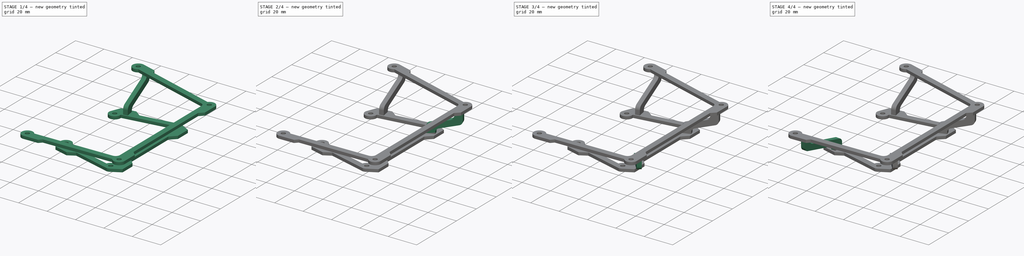
[diagram: build sequence overview — one tinted view per stage of 4, left to right]
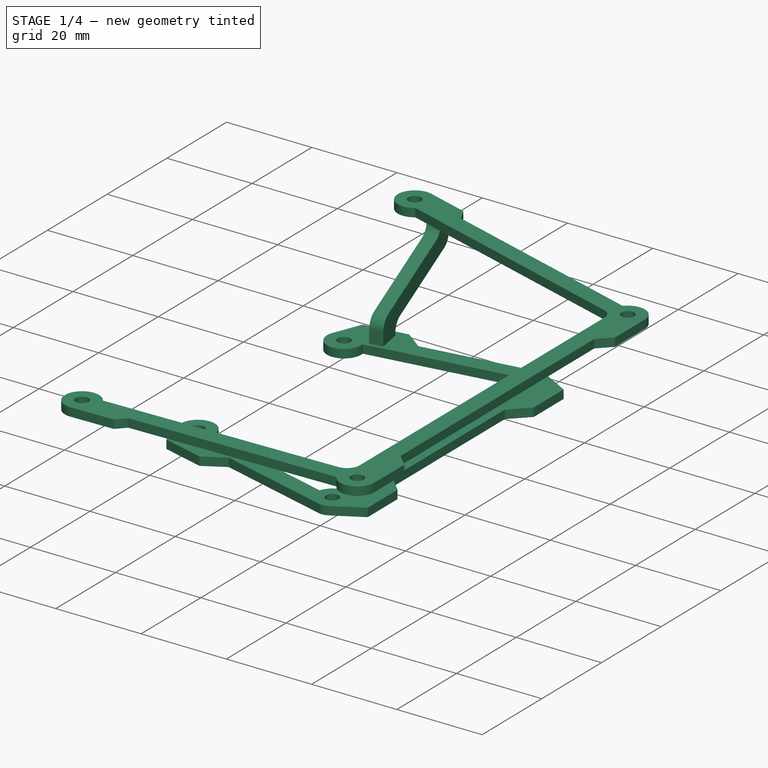
[diagram: stage 1 of 4 — iso view after this stage's code; geometry added in this stage tinted green]
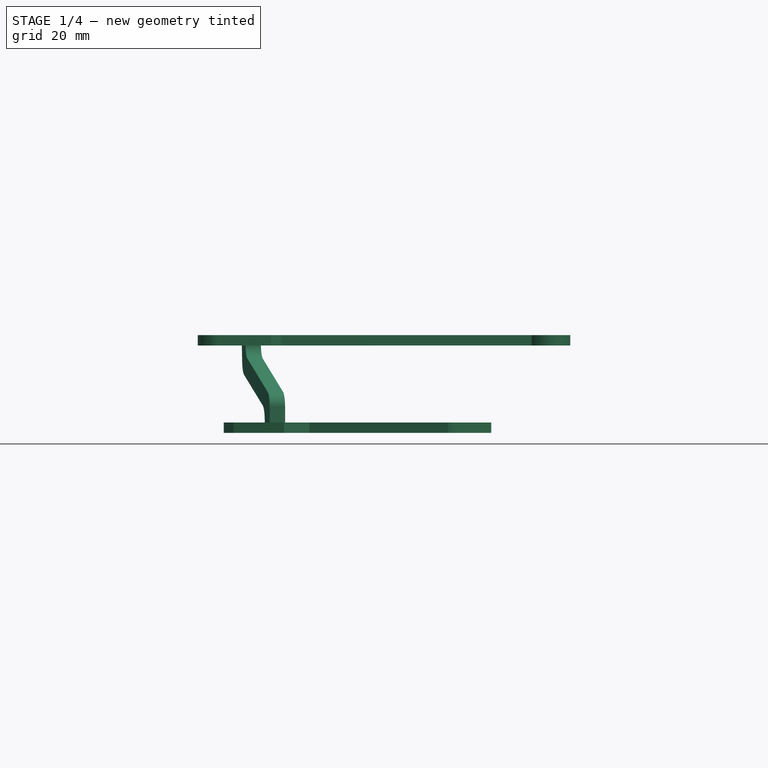
[diagram: stage 1 of 4 — front view after this stage's code; geometry added in this stage tinted green]
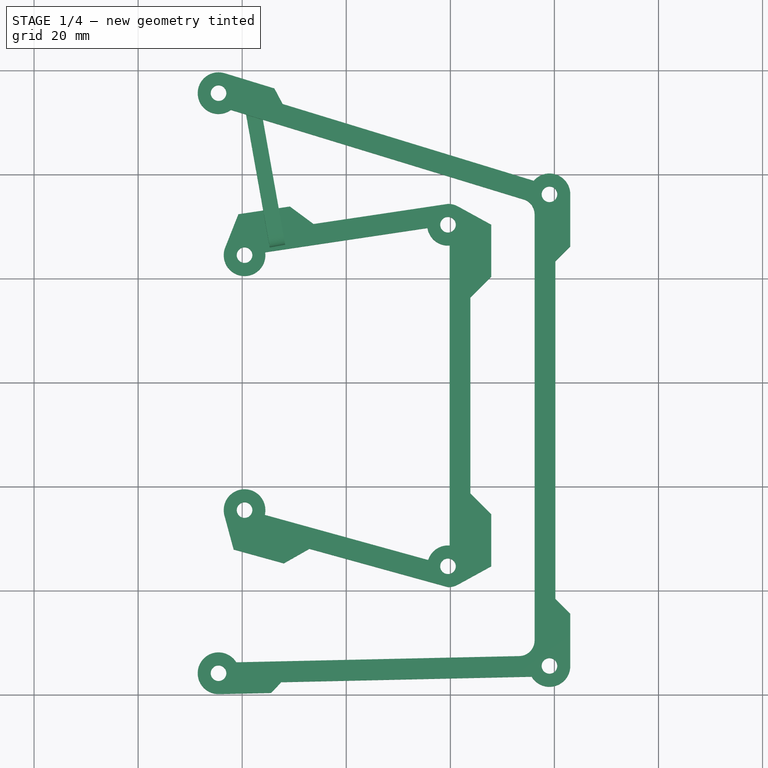
[diagram: stage 1 of 4 — top view after this stage's code; geometry added in this stage tinted green]
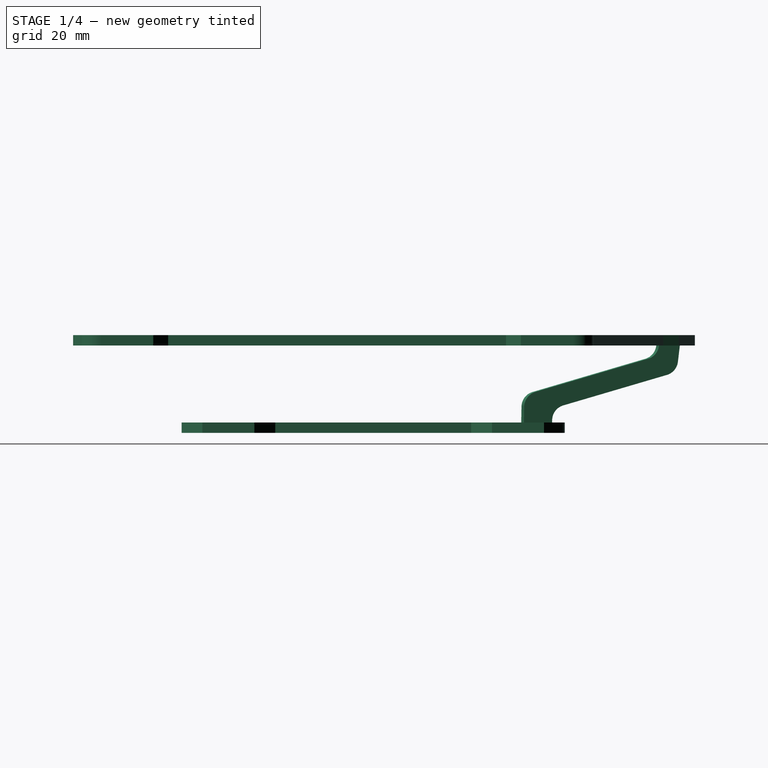
[diagram: stage 1 of 4 — right view after this stage's code; geometry added in this stage tinted green]
FCSTD DOCUMENT  (FreeCAD 0.18R15619 (Git))
Label: to-print-midibox
License: All rights reserved
LicenseURL: http://en.wikipedia.org/wiki/All_rights_reserved
objects: Sketcher::SketchObject×8, PartDesign::Point×7, PartDesign::Pad×6, PartDesign::Body×6, Part::Fuse×5, PartDesign::Plane×4, PartDesign::Line×3
note: 45 computed .brp shape members not serialized (recipe doc carries the construction recipe); baked Part::Feature solids carry a one-line shape summary decoded from their .brp

FEATURE [Sketcher::SketchObject] Sketch  label="sk-bottom"
  MapMode = 5
  Support = -> [XY_Plane]
  sketch-geometry (46):
    g0: Circle CenterX=-19.55 CenterY=24.5 CenterZ=0 NormalX=0 NormalY=0 NormalZ=1 AngleXU=0 Radius=1.5
    g1: Circle CenterX=19.55 CenterY=30.35 CenterZ=0 NormalX=0 NormalY=0 NormalZ=1 AngleXU=0 Radius=1.5
    g2: Circle CenterX=19.55 CenterY=-35.3 CenterZ=0 NormalX=0 NormalY=0 NormalZ=1 AngleXU=0 Radius=1.5
    g3: Circle CenterX=-19.55 CenterY=-24.5 CenterZ=0 NormalX=0 NormalY=0 NormalZ=1 AngleXU=0 Radius=1.5
    g4: LineSegment [constr] StartX=-19.55 StartY=24.5 StartZ=0 EndX=19.55 EndY=30.35 EndZ=0
    g5: LineSegment [constr] StartX=19.55 StartY=30.35 StartZ=0 EndX=19.55 EndY=-35.3 EndZ=0
    g6: LineSegment [constr] StartX=19.55 StartY=-35.3 StartZ=0 EndX=-19.55 EndY=-24.5 EndZ=0
    g7: Circle [constr] CenterX=-19.55 CenterY=24.5 CenterZ=0 NormalX=0 NormalY=0 NormalZ=1 AngleXU=0 Radius=4
    g8: Circle [constr] CenterX=19.55 CenterY=30.35 CenterZ=0 NormalX=0 NormalY=0 NormalZ=1 AngleXU=0 Radius=4
    g9: Circle [constr] CenterX=19.55 CenterY=-35.3 CenterZ=0 NormalX=0 NormalY=0 NormalZ=1 AngleXU=0 Radius=4
    g10: Circle [constr] CenterX=-19.55 CenterY=-24.5 CenterZ=0 NormalX=0 NormalY=0 NormalZ=1 AngleXU=0 Radius=4
    g11: LineSegment StartX=-15.5878 StartY=25.0483 StartZ=0 EndX=15.6008 EndY=29.7146 EndZ=0
    g12: LineSegment StartX=19.8617 StartY=26.3622 StartZ=0 EndX=19.8617 EndY=-31.3122 EndZ=0
    g13: LineSegment StartX=15.7353 StartY=-34.0965 StartZ=0 EndX=-15.6585 EndY=-25.4251 EndZ=0
    g14: ArcOfCircle CenterX=-19.55 CenterY=24.5 CenterZ=0 NormalX=0 NormalY=0 NormalZ=1 AngleXU=0 Radius=4 StartAngle=2.76331 EndAngle=6.42069
    g15: ArcOfCircle CenterX=19.55 CenterY=30.35 CenterZ=0 NormalX=0 NormalY=0 NormalZ=1 AngleXU=0 Radius=4 StartAngle=1.06872 EndAngle=1.5708
    g16: ArcOfCircle CenterX=19.55 CenterY=-35.3 CenterZ=0 NormalX=0 NormalY=0 NormalZ=1 AngleXU=0 Radius=4 StartAngle=4.71239 EndAngle=5.21447
    g17: ArcOfCircle CenterX=-19.55 CenterY=-24.5 CenterZ=0 NormalX=0 NormalY=0 NormalZ=1 AngleXU=0 Radius=4 StartAngle=6.04979 EndAngle=9.68952
    g18: ArcOfCircle CenterX=19.55 CenterY=30.35 CenterZ=0 NormalX=0 NormalY=0 NormalZ=1 AngleXU=0 Radius=4 StartAngle=3.30112 EndAngle=4.79039
    g19: ArcOfCircle CenterX=19.55 CenterY=-35.3 CenterZ=0 NormalX=0 NormalY=0 NormalZ=1 AngleXU=0 Radius=4 StartAngle=1.4928 EndAngle=2.83599
    g20: LineSegment [constr] StartX=-16.1796 StartY=29.0043 StartZ=0 EndX=-15.5878 EndY=25.0483 EndZ=0
    g21: LineSegment [constr] StartX=19.8617 StartY=26.3622 StartZ=0 EndX=23.8617 EndY=26.3622 EndZ=0
    g22: LineSegment [constr] StartX=-19.55 StartY=24.5 StartZ=0 EndX=-19.55 EndY=-24.5 EndZ=0
    g23: LineSegment StartX=-23.2672 StartY=25.9773 StartZ=0 EndX=-20.7272 EndY=32.3684 EndZ=0
    g24: LineSegment StartX=-20.7272 StartY=32.3684 StartZ=0 EndX=-10.8373 EndY=33.8481 EndZ=0
    g25: LineSegment StartX=-10.8373 StartY=33.8481 StartZ=0 EndX=-6.28947 EndY=30.484 EndZ=0
    g26: LineSegment StartX=-6.28947 StartY=30.484 StartZ=0 EndX=19.55 EndY=34.35 EndZ=0
    g27: LineSegment [constr] StartX=-20.7272 StartY=32.3684 StartZ=0 EndX=-19.55 EndY=24.5 EndZ=0
    g28: LineSegment StartX=21.475 StartY=33.8563 StartZ=0 EndX=27.8617 EndY=30.35 EndZ=0
    g29: LineSegment StartX=27.8617 StartY=30.35 StartZ=0 EndX=27.8617 EndY=20.35 EndZ=0
    g30: LineSegment StartX=27.8617 StartY=20.35 StartZ=0 EndX=23.8617 EndY=16.35 EndZ=0
    g31: LineSegment StartX=23.8617 StartY=16.35 StartZ=0 EndX=23.8617 EndY=-21.3 EndZ=0
    g32: LineSegment StartX=23.8617 StartY=-21.3 StartZ=0 EndX=27.8617 EndY=-25.3 EndZ=0
    g33: LineSegment StartX=27.8617 StartY=-25.3 StartZ=0 EndX=27.8617 EndY=-35.3 EndZ=0
    g34: LineSegment StartX=27.8617 StartY=-35.3 StartZ=0 EndX=21.475 EndY=-38.8063 EndZ=0
    g35: LineSegment [constr] StartX=19.55 StartY=30.35 StartZ=0 EndX=27.8617 EndY=30.35 EndZ=0
    g36: LineSegment [constr] StartX=19.55 StartY=-35.3 StartZ=0 EndX=27.8617 EndY=-35.3 EndZ=0
    g37: LineSegment [constr] StartX=-16.7715 StartY=32.9602 StartZ=0 EndX=-16.1796 EndY=29.0043 EndZ=0
    g38: LineSegment [constr] StartX=23.8617 StartY=26.3622 StartZ=0 EndX=27.8617 EndY=26.3622 EndZ=0
    g39: LineSegment StartX=-23.4106 StartY=-25.5466 StartZ=0 EndX=-21.6415 EndY=-32.0721 EndZ=0
    g40: LineSegment StartX=-21.6415 StartY=-32.0721 StartZ=0 EndX=-12.0025 EndY=-34.7345 EndZ=0
    g41: LineSegment StartX=-12.0025 StartY=-34.7345 StartZ=0 EndX=-7.08186 EndY=-31.9439 EndZ=0
    g42: LineSegment StartX=-7.08186 StartY=-31.9439 StartZ=0 EndX=19.55 EndY=-39.3 EndZ=0
    g43: LineSegment [constr] StartX=-15.6585 StartY=-25.4251 StartZ=0 EndX=-16.7234 EndY=-29.2807 EndZ=0
    g44: LineSegment [constr] StartX=-16.7234 StartY=-29.2807 StartZ=0 EndX=-17.7884 EndY=-33.1364 EndZ=0
    g45: LineSegment [constr] StartX=-19.55 StartY=-24.5 StartZ=0 EndX=-21.6415 EndY=-32.0721 EndZ=0
  constraints (125):
    c: Radius(g3) = 1.5  'Hole radius'
    c: Equal(g3,g0)
    c: Equal(g3,g1)
    c: Equal(g3,g2)
    c: Coincident(g5,g6)
    c: Coincident(g0,g4)
    c: Coincident(g1,g4)
    c: Coincident(g1,g5)
    c: Coincident(g2,g5)
    c: Coincident(g3,g6)
    c: Coincident(g0,g7)
    c: Coincident(g1,g8)
    c: Coincident(g2,g9)
    c: Coincident(g3,g10)
    c: Radius(g8) = 4  'Outer radius'
    c: Equal(g8,g9)
    c: Equal(g8,g10)
    c: Equal(g8,g7)
    c: PointOnObject(g14,g7)
    c: PointOnObject(g11,g8)
    c: PointOnObject(g15,g8)
    c: PointOnObject(g12,g9)
    c: PointOnObject(g16,g9)
    c: PointOnObject(g13,g10)
    c: Parallel(g11,g4)
    c: Parallel(g12,g5)
    c: Parallel(g13,g6)
    c: Coincident(g14,g0)
    c: Coincident(g11,g14)
    c: Coincident(g15,g1)
    c: Coincident(g16,g2)
    c: Coincident(g17,g3)
    c: Coincident(g17,g13)
    c: Coincident(g18,g1)
    c: Coincident(g18,g12)
    c: Coincident(g18,g11)
    c: Coincident(g19,g12)
    c: Coincident(g19,g13)
    c: Coincident(g19,g2)
    c: Equal(g21,g20)
    c: PointOnObject(g15,g5)
    c: PointOnObject(g16,g5)
    c: Distance(g21) = 4  'Thickness'
    c: DistanceX(g0,g1) = 39.1
    c: DistanceY(g2,g1) = 65.65
    c: Vertical(g5)
    c: DistanceY(g-1,g0) = 24.5
    c: Coincident(g22,g0)
    c: Coincident(g22,g3)
    c: Vertical(g22)
    c: Distance(g22) = 49
    c: DistanceX(g-2,g0) = -19.55
    c: DistanceY(g2,g3) = 10.8
    c: Coincident(g20,g11)
    c: Coincident(g21,g12)
    c: Coincident(g23,g24)
    c: Coincident(g24,g25)
    c: Coincident(g25,g26)
    c: Perpendicular(g4,g20)
    c: PointOnObject(g20,g26)
    c: Coincident(g26,g15)
    c: Coincident(g23,g14)
    c: Tangent(g23,g7)
    c: Coincident(g27,g23)
    c: Coincident(g27,g0)
    c: Perpendicular(g4,g27)
    c: Distance(g24) = 10
    c: Parallel(g24,g4)
    c: Angle(g24,g25) = 2.35619
    c: Parallel(g26,g4)
    c: Coincident(g28,g29)
    c: Coincident(g29,g30)
    c: Coincident(g30,g31)
    c: Coincident(g31,g32)
    c: Coincident(g32,g33)
    c: Coincident(g33,g34)
    c: Coincident(g34,g16)
    c: Equal(g24,g29)
    c: Coincident(g28,g15)
    c: Tangent(g28,g8)
    c: Coincident(g35,g1)
    c: Coincident(g35,g28)
    c: Perpendicular(g5,g35)
    c: Parallel(g29,g5)
    c: Parallel(g31,g5)
    c: PointOnObject(g21,g31)
    c: Perpendicular(g5,g21)
    c: Parallel(g33,g5)
    c: Equal(g33,g29)
    c: Angle(g32,g33) = 2.35619
    c: Tangent(g34,g9)
    c: Coincident(g2,g36)
    c: Coincident(g36,g33)
    c: Perpendicular(g5,g36)
    c: PointOnObject(g37,g24)
    c: Coincident(g37,g20)
    c: Perpendicular(g37,g24)
    c: Equal(g37,g20)
    c: PointOnObject(g38,g29)
    c: Coincident(g38,g21)
    c: Perpendicular(g29,g38)
    c: Equal(g38,g21)
    c: Angle(g29,g30) = 2.35619
    c: Vertical(g32,g29)
    c: Coincident(g39,g40)
    c: Coincident(g40,g41)
    c: Coincident(g41,g42)
    c: Coincident(g42,g16)
    c: Parallel(g42,g6)
    c: Parallel(g40,g6)
    c: Coincident(g39,g17)
    c: Tangent(g39,g10)
    c: Angle(g41,g40) = 2.35619
    c: Coincident(g43,g13)
    c: PointOnObject(g43,g42)
    c: Perpendicular(g6,g43)
    c: Coincident(g44,g43)
    c: Perpendicular(g6,g44)
    c: Equal(g44,g43)
    c: PointOnObject(g44,g40)
    c: Equal(g40,g33)
    c: Equal(g44,g21)
    c: Coincident(g45,g3)
    c: Coincident(g45,g39)
    c: Perpendicular(g6,g45)
FEATURE [PartDesign::Pad] Pad  label="pad-bottom"
  Length = 2
  Length2 = 100
  Profile = -> Sketch
  Type = 0
FEATURE [PartDesign::Body] Body  label="bottom"
  Group = -> [Sketch,Pad]
  Origin = -> Origin
  Tip = -> Pad
FEATURE [PartDesign::Point] DatumPoint  label="bot"
  AttacherType = Attacher::AttachEnginePoint
  MapMode = 36
  Placement = pos=(19.55,30.35,0) rot=(1,0,0;1.5708rad)
  Support = -> [Sketch]
FEATURE [Sketcher::SketchObject] Sketch001  label="sk-top"
  ExternalGeometry = -> [DatumPoint]
  Placement = pos=(0,0,18.8) rot=(0,0,1;0rad)
  sketch-geometry (44):
    g0: LineSegment [constr] StartX=-24.55 StartY=55.35 StartZ=0 EndX=39.05 EndY=35.9 EndZ=0
    g1: LineSegment [constr] StartX=39.05 StartY=35.9 StartZ=0 EndX=39.05 EndY=-54.75 EndZ=0
    g2: LineSegment [constr] StartX=39.05 StartY=-54.75 StartZ=0 EndX=-24.55 EndY=-56.15 EndZ=0
    g3: LineSegment [constr] StartX=36.1883 StartY=32.0737 StartZ=0 EndX=40.216 EndY=32.0737 EndZ=0
    g4: Circle CenterX=-24.55 CenterY=55.35 CenterZ=0 NormalX=0 NormalY=0 NormalZ=1 AngleXU=0 Radius=1.5
    g5: Circle CenterX=39.05 CenterY=35.9 CenterZ=0 NormalX=0 NormalY=0 NormalZ=1 AngleXU=0 Radius=1.5
    g6: Circle CenterX=39.05 CenterY=-54.75 CenterZ=0 NormalX=0 NormalY=0 NormalZ=1 AngleXU=0 Radius=1.5
    g7: Circle CenterX=-24.55 CenterY=-56.15 CenterZ=0 NormalX=0 NormalY=0 NormalZ=1 AngleXU=0 Radius=1.5
    g8: Circle [constr] CenterX=-24.55 CenterY=55.35 CenterZ=0 NormalX=0 NormalY=0 NormalZ=1 AngleXU=0 Radius=4
    g9: Circle [constr] CenterX=39.05 CenterY=35.9 CenterZ=0 NormalX=0 NormalY=0 NormalZ=1 AngleXU=0 Radius=4
    g10: Circle [constr] CenterX=39.05 CenterY=-54.75 CenterZ=0 NormalX=0 NormalY=0 NormalZ=1 AngleXU=0 Radius=4
    g11: Circle [constr] CenterX=-24.55 CenterY=-56.15 CenterZ=0 NormalX=0 NormalY=0 NormalZ=1 AngleXU=0 Radius=4
    g12: LineSegment StartX=36.1883 StartY=32.0737 StartZ=0 EndX=36.1883 EndY=-49.8608 EndZ=0
    g13: LineSegment StartX=-21.141 StartY=-54.0575 StartZ=0 EndX=33.2543 EndY=-52.8601 EndZ=0
    g14: ArcOfCircle CenterX=-24.55 CenterY=55.35 CenterZ=0 NormalX=0 NormalY=0 NormalZ=1 AngleXU=0 Radius=4 StartAngle=1.27401 EndAngle=5.34481
    g15: ArcOfCircle CenterX=33.1883 CenterY=32.0737 CenterZ=0 NormalX=0 NormalY=0 NormalZ=1 AngleXU=0 Radius=3 StartAngle=-9e-16 EndAngle=1.15662
    g16: ArcOfCircle CenterX=33.1883 CenterY=-49.8608 CenterZ=0 NormalX=0 NormalY=0 NormalZ=1 AngleXU=0 Radius=3 StartAngle=4.7344 EndAngle=6.28319
    g17: ArcOfCircle CenterX=39.05 CenterY=35.9 CenterZ=0 NormalX=0 NormalY=0 NormalZ=1 AngleXU=0 Radius=4 StartAngle=0 EndAngle=2.43162
    g18: ArcOfCircle CenterX=39.05 CenterY=-54.75 CenterZ=0 NormalX=0 NormalY=0 NormalZ=1 AngleXU=0 Radius=4 StartAngle=3.68231 EndAngle=6.28319
    g19: ArcOfCircle CenterX=-24.55 CenterY=-56.15 CenterZ=0 NormalX=0 NormalY=0 NormalZ=1 AngleXU=0 Radius=4 StartAngle=0.550514 EndAngle=4.7344
    g20: LineSegment [constr] StartX=36.0165 StartY=38.5072 StartZ=0 EndX=33.1883 EndY=32.0737 EndZ=0
    g21: LineSegment [constr] StartX=33.1883 StartY=32.0737 StartZ=0 EndX=40.216 EndY=32.0737 EndZ=0
    g22: LineSegment [constr] StartX=33.1883 StartY=-49.8608 StartZ=0 EndX=40.4602 EndY=-51.0068 EndZ=0
    g23: LineSegment [constr] StartX=35.6206 StartY=-56.809 StartZ=0 EndX=33.1883 EndY=-49.8608 EndZ=0
    g24: LineSegment [constr] StartX=-24.55 StartY=55.35 StartZ=0 EndX=-24.55 EndY=-56.15 EndZ=0
    g25: LineSegment StartX=-22.1856 StartY=52.1236 StartZ=0 EndX=34.3956 EndY=34.8201 EndZ=0
    g26: LineSegment StartX=-23.3802 StartY=59.1751 StartZ=0 EndX=-13.8174 EndY=56.2506 EndZ=0
    g27: LineSegment StartX=-13.8174 StartY=56.2506 StartZ=0 EndX=-12.2283 EndY=53.2613 EndZ=0
    g28: LineSegment StartX=-12.2283 StartY=53.2613 StartZ=0 EndX=36.0165 EndY=38.5072 EndZ=0
    g29: LineSegment StartX=43.05 StartY=-54.75 StartZ=0 EndX=43.05 EndY=-44.75 EndZ=0
    g30: LineSegment StartX=40.1883 StartY=-41.8883 StartZ=0 EndX=43.05 EndY=-44.75 EndZ=0
    g31: LineSegment StartX=43.05 StartY=35.9 StartZ=0 EndX=43.05 EndY=25.9 EndZ=0
    g32: LineSegment StartX=43.05 StartY=25.9 StartZ=0 EndX=40.1883 EndY=23.0383 EndZ=0
    g33: LineSegment StartX=40.1883 StartY=23.0383 StartZ=0 EndX=40.1883 EndY=-41.8883 EndZ=0
    g34: LineSegment [constr] StartX=36.1883 StartY=23.0383 StartZ=0 EndX=40.1883 EndY=23.0383 EndZ=0
    g35: LineSegment [constr] StartX=-12.2283 StartY=53.2613 StartZ=0 EndX=-13.398 EndY=49.4362 EndZ=0
    g36: LineSegment [constr] StartX=-23.3802 StartY=59.1751 StartZ=0 EndX=-24.55 EndY=55.35 EndZ=0
    g37: LineSegment [constr] StartX=43.05 StartY=35.9 StartZ=0 EndX=39.05 EndY=35.9 EndZ=0
    g38: LineSegment [constr] StartX=39.05 StartY=-54.75 StartZ=0 EndX=43.05 EndY=-54.75 EndZ=0
    g39: LineSegment StartX=-24.462 StartY=-60.149 StartZ=0 EndX=-14.4644 EndY=-59.929 EndZ=0
    g40: LineSegment StartX=-14.4644 StartY=-59.929 StartZ=0 EndX=-12.4923 EndY=-57.8681 EndZ=0
    g41: LineSegment StartX=-12.4923 StartY=-57.8681 StartZ=0 EndX=35.6206 EndY=-56.809 EndZ=0
    g42: LineSegment [constr] StartX=-24.55 StartY=-56.15 StartZ=0 EndX=-24.462 EndY=-60.149 EndZ=0
    g43: LineSegment [constr] StartX=-12.4923 StartY=-57.8681 StartZ=0 EndX=-12.5803 EndY=-53.8691 EndZ=0
  constraints (115):
    c: Coincident(g0,g1)
    c: Coincident(g1,g2)
    c: Perpendicular(g1,g3)
    c: Coincident(g7,g2)
    c: Coincident(g4,g0)
    c: Coincident(g5,g0)
    c: Coincident(g6,g1)
    c: Radius(g7) = 1.5  'hole radius'
    c: Equal(g7,g6)
    c: Equal(g7,g5)
    c: Equal(g7,g4)
    c: Radius(g11) = 4  'Outer Radius'
    c: Equal(g11,g10)
    c: Equal(g11,g9)
    c: Equal(g11,g8)
    c: Coincident(g8,g4)
    c: Coincident(g9,g5)
    c: Coincident(g10,g6)
    c: Coincident(g11,g7)
    c: Parallel(g13,g2)
    c: Parallel(g12,g1)
    c: PointOnObject(g17,g9)
    c: PointOnObject(g13,g11)
    c: Coincident(g14,g4)
    c: Tangent(g12,g15) = 1.5708
    c: Tangent(g12,g16) = 1.5708
    c: Tangent(g13,g16) = -1.5708
    c: Radius(g16) = 3  'Inner radius'
    c: Equal(g16,g15)
    c: Tangent(g15,g9)
    c: Coincident(g17,g5)
    c: Coincident(g18,g6)
    c: PointOnObject(g14,g8)
    c: PointOnObject(g18,g10)
    c: Coincident(g19,g13)
    c: Coincident(g19,g7)
    c: Coincident(g21,g20)
    c: Coincident(g21,g15)
    c: Equal(g20,g21)
    c: Coincident(g16,g22)
    c: Coincident(g16,g23)
    c: Coincident(g3,g12)
    c: Coincident(g18,g23)
    c: Equal(g23,g22)
    c: Vertical(g1)
    c: Coincident(g7,g24)
    c: Coincident(g24,g4)
    c: Vertical(g24)
    c: DistanceX(g4,g5) = 63.6
    c: DistanceY(g5,g4) = 19.45
    c: Distance(g1) = 90.65
    c: Distance(g24) = 111.5
    c: Coincident(g25,g15)
    c: Coincident(g14,g25)
    c: PointOnObject(g15,g20)
    c: DistanceX(g-3,g5) = 19.5
    c: DistanceY(g-3,g4) = 25
    c: Coincident(g26,g27)
    c: Coincident(g28,g17)
    c: Parallel(g28,g0)
    c: Parallel(g26,g0)
    c: Coincident(g20,g17)
    c: Coincident(g14,g26)
    c: Coincident(g29,g30)
    c: Coincident(g3,g21)
    c: Coincident(g18,g29)
    c: Parallel(g29,g1)
    c: Coincident(g31,g32)
    c: Coincident(g32,g33)
    c: Coincident(g30,g33)
    c: Parallel(g33,g1)
    c: Coincident(g17,g31)
    c: Parallel(g31,g1)
    c: Equal(g31,g26)
    c: Equal(g26,g29)
    c: Distance(g26) = 10  'Pad Length'
    c: PointOnObject(g3,g9)
    c: Coincident(g34,g32)
    c: PointOnObject(g34,g12)
    c: Perpendicular(g1,g34)
    c: Coincident(g28,g27)
    c: Coincident(g35,g27)
    c: PointOnObject(g35,g25)
    c: Perpendicular(g0,g35)
    c: Equal(g35,g34)
    c: Distance(g34) = 4  'Thickness'
    c: Coincident(g4,g36)
    c: Coincident(g36,g14)
    c: Perpendicular(g0,g36)
    c: Angle(g26,g27) = 2.35619
    c: Coincident(g37,g17)
    c: Coincident(g37,g5)
    c: Perpendicular(g1,g37)
    c: Angle(g31,g32) = 2.35619
    c: Coincident(g38,g18)
    c: Coincident(g38,g6)
    c: Perpendicular(g1,g38)
    c: Angle(g30,g29) = 2.35619
    c: Coincident(g39,g40)
    c: Coincident(g40,g41)
    c: Coincident(g18,g41)
    c: Parallel(g41,g2)
    c: Coincident(g39,g19)
    c: Parallel(g39,g2)
    c: Coincident(g42,g19)
    c: Coincident(g42,g7)
    c: Perpendicular(g2,g42)
    c: Equal(g39,g29)
    c: Coincident(g43,g40)
    c: PointOnObject(g43,g13)
    c: Perpendicular(g2,g43)
    c: Equal(g43,g34)
    c: Angle(g40,g39) = 2.35619
    c: PointOnObject(g22,g10)
    c: Parallel(g25,g0)
FEATURE [PartDesign::Pad] Pad001
  Length = 2
  Length2 = 100
  Placement = pos=(0,0,18.8) rot=(0,0,1;0rad)
  Profile = -> Sketch001
  Reversed = true
  Type = 0
FEATURE [Sketcher::SketchObject] Sketch002  label="bot-01"
  Placement = pos=(0,0,2) rot=(0,0,1;0rad)
  sketch-geometry (7):
    g0: LineSegment [constr] StartX=-18.5217 StartY=53.8625 StartZ=0 EndX=-13.6606 EndY=28.8456 EndZ=0
    g1: LineSegment StartX=-16.0979 StartY=30.9034 StartZ=0 EndX=-12.1713 EndY=31.6664 EndZ=0
    g2: LineSegment StartX=-12.1713 StartY=31.6664 StartZ=0 EndX=-11.2233 EndY=26.7877 EndZ=0
    g3: LineSegment StartX=-11.2233 StartY=26.7877 StartZ=0 EndX=-15.1499 EndY=26.0247 EndZ=0
    g4: LineSegment StartX=-15.1499 StartY=26.0247 StartZ=0 EndX=-16.0979 EndY=30.9034 EndZ=0
    g5: LineSegment [constr] StartX=-12.1713 StartY=31.6664 StartZ=0 EndX=-15.1499 EndY=26.0247 EndZ=0
    g6: LineSegment [constr] StartX=-16.0979 StartY=30.9034 StartZ=0 EndX=-11.2233 EndY=26.7877 EndZ=0
  constraints (15):
    c: Coincident(g1,g2)
    c: Coincident(g2,g3)
    c: Coincident(g3,g4)
    c: Coincident(g4,g1)
    c: Parallel(g4,g0)
    c: Parallel(g0,g2)
    c: Parallel(g1,g3)
    c: Perpendicular(g2,g1)
    c: Distance(g1) = 4
    c: Coincident(g5,g1)
    c: Coincident(g5,g3)
    c: Coincident(g1,g6)
    c: Coincident(g6,g2)
    c: PointOnObject(g0,g5)
    c: PointOnObject(g0,g6)
FEATURE [Sketcher::SketchObject] Sketch003  label="top-01"
  Placement = pos=(0,0,16.8) rot=(0,0,1;0rad)
  sketch-geometry (8):
    g0: LineSegment StartX=-20.5201 StartY=55.5766 StartZ=0 EndX=-16.5851 EndY=56.2948 EndZ=0
    g1: LineSegment StartX=-16.5851 StartY=56.2948 StartZ=0 EndX=-15.9709 EndY=52.9295 EndZ=0
    g2: LineSegment StartX=-15.9709 StartY=52.9295 StartZ=0 EndX=-19.9059 EndY=52.2113 EndZ=0
    g3: LineSegment StartX=-19.9059 StartY=52.2113 StartZ=0 EndX=-20.5201 EndY=55.5766 EndZ=0
    g4: LineSegment [constr] StartX=-16.5851 StartY=56.2948 StartZ=0 EndX=-19.9059 EndY=52.2113 EndZ=0
    g5: LineSegment [constr] StartX=-20.5201 StartY=55.5766 StartZ=0 EndX=-15.9709 EndY=52.9295 EndZ=0
    g6: GeomPoint X=-18.2455 Y=54.2531 Z=0
    g7: LineSegment [constr] StartX=-18.2455 StartY=54.2531 StartZ=0 EndX=-13.5938 EndY=28.7665 EndZ=0
  constraints (16):
    c: Coincident(g0,g1)
    c: Coincident(g1,g2)
    c: Coincident(g2,g3)
    c: Coincident(g3,g0)
    c: Equal(g1,g3)
    c: Equal(g0,g2)
    c: Perpendicular(g1,g0)
    c: Coincident(g5,g0)
    c: Coincident(g5,g1)
    c: Coincident(g4,g2)
    c: Coincident(g4,g0)
    c: PointOnObject(g6,g4)
    c: PointOnObject(g6,g5)
    c: Coincident(g7,g6)
    c: Perpendicular(g2,g7)
    c: Distance(g2) = 4
FEATURE [PartDesign::Plane] DatumPlane
  AttachmentOffset = pos=(0,0,-2) rot=(0,0,1;0rad)
  Length = 39.1323
  MapMode = 52
  Placement = pos=(-18.5537,55.942,16.8) rot=(0.717997,-0.129474,0.683898;3.63926rad)
  ResizeMode = 0
  Support = -> [Sketch003,Sketch002,Z_Axis002]
  Width = 83.2212
FEATURE [Sketcher::SketchObject] Sketch004
  MapMode = 5
  Placement = pos=(-18.5537,55.942,16.8) rot=(0.717997,-0.129474,0.683898;3.63926rad)
  Support = -> [DatumPlane]
  sketch-geometry (12):
    g0: LineSegment StartX=1.89828 StartY=33.9613 StartZ=0 EndX=5.22008 EndY=31.9127 EndZ=0
    g1: LineSegment StartX=6.55033 StartY=28.6103 StartZ=0 EndX=0.831685 EndY=6.42752 EndZ=0
    g2: LineSegment StartX=1.91498 StartY=3.29507 StartZ=0 EndX=2.35313 EndY=2.9602 EndZ=0
    g3: LineSegment StartX=2.35313 StartY=2.9602 StartZ=0 EndX=-0.0952325 EndY=-0.243246 EndZ=0
    g4: LineSegment StartX=-0.0952325 StartY=-0.243246 StartZ=0 EndX=-2.62878 EndY=1.69311 EndZ=0
    g5: LineSegment StartX=-3.71207 StartY=4.82557 StartZ=0 EndX=1.5499 EndY=25.2369 EndZ=0
    g6: LineSegment StartX=0.219648 StartY=28.5393 StartZ=0 EndX=-0.986732 EndY=29.2833 EndZ=0
    g7: LineSegment StartX=-0.986732 StartY=29.2833 StartZ=0 EndX=1.89828 EndY=33.9613 EndZ=0
    g8: ArcOfCircle CenterX=3.64531 CenterY=29.3592 CenterZ=0 NormalX=0 NormalY=0 NormalZ=1 AngleXU=0 Radius=3 StartAngle=6.03088 EndAngle=7.30136
    g9: ArcOfCircle CenterX=-1.35512 CenterY=25.9858 CenterZ=0 NormalX=0 NormalY=0 NormalZ=1 AngleXU=0 Radius=3 StartAngle=6.03088 EndAngle=7.30136
    g10: ArcOfCircle CenterX=3.73671 CenterY=5.67862 CenterZ=0 NormalX=0 NormalY=0 NormalZ=1 AngleXU=0 Radius=3 StartAngle=2.88929 EndAngle=4.05981
    g11: ArcOfCircle CenterX=-0.807053 CenterY=4.07667 CenterZ=0 NormalX=0 NormalY=0 NormalZ=1 AngleXU=0 Radius=3 StartAngle=2.88929 EndAngle=4.05981
  constraints (22):
    c: Coincident(g2,g3)
    c: Coincident(g3,g4)
    c: Coincident(g6,g7)
    c: Coincident(g7,g0)
    c: Parallel(g1,g5)
    c: Parallel(g2,g4)
    c: Parallel(g0,g6)
    c: Perpendicular(g4,g3)
    c: Perpendicular(g0,g7)
    c: Tangent(g0,g8) = 1.5708
    c: Tangent(g1,g8) = 1.5708
    c: Tangent(g5,g9) = -1.5708
    c: Tangent(g6,g9) = -1.5708
    c: Tangent(g1,g10) = -1.5708
    c: Tangent(g2,g10) = -1.5708
    c: Tangent(g4,g11) = 1.5708
    c: Tangent(g5,g11) = 1.5708
    c: Radius(g11) = 3
    c: Equal(g11,g10)
    c: Equal(g11,g9)
    c: Equal(g11,g8)
    c: Distance(g5,g1) = 4
FEATURE [PartDesign::Pad] Pad002
  Length = 3
  Length2 = 100
  Midplane = true
  Placement = pos=(-18.5537,55.942,16.8) rot=(0.717997,-0.129474,0.683898;3.63926rad)
  Profile = -> Sketch004
  Type = 0
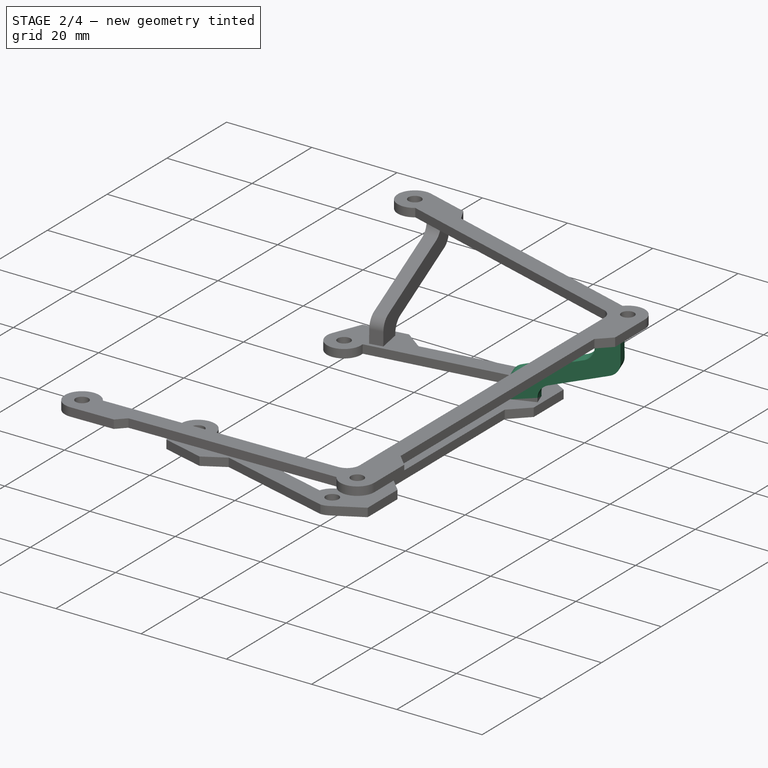
[diagram: stage 2 of 4 — iso view after this stage's code; geometry added in this stage tinted green]
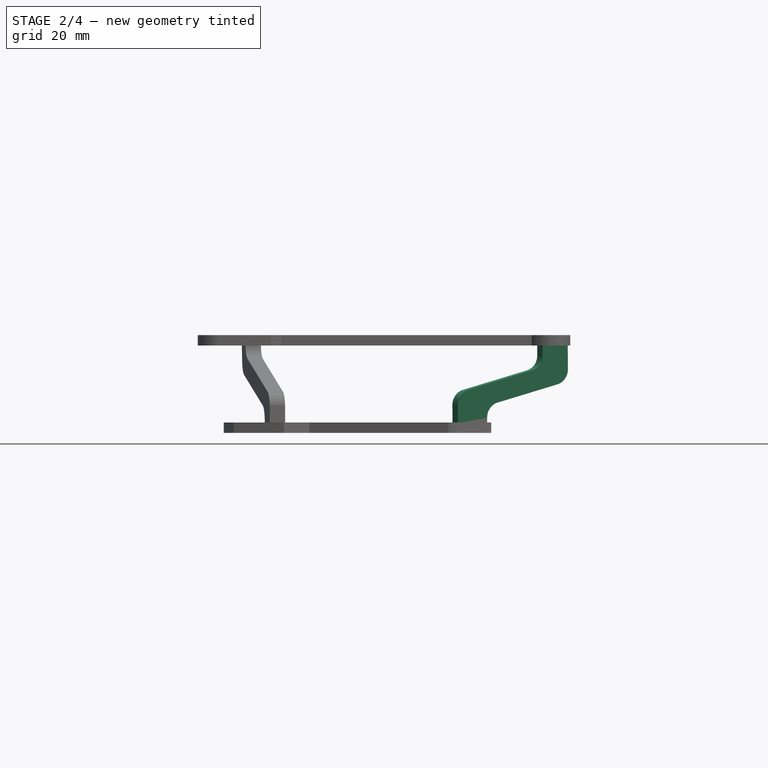
[diagram: stage 2 of 4 — front view after this stage's code; geometry added in this stage tinted green]
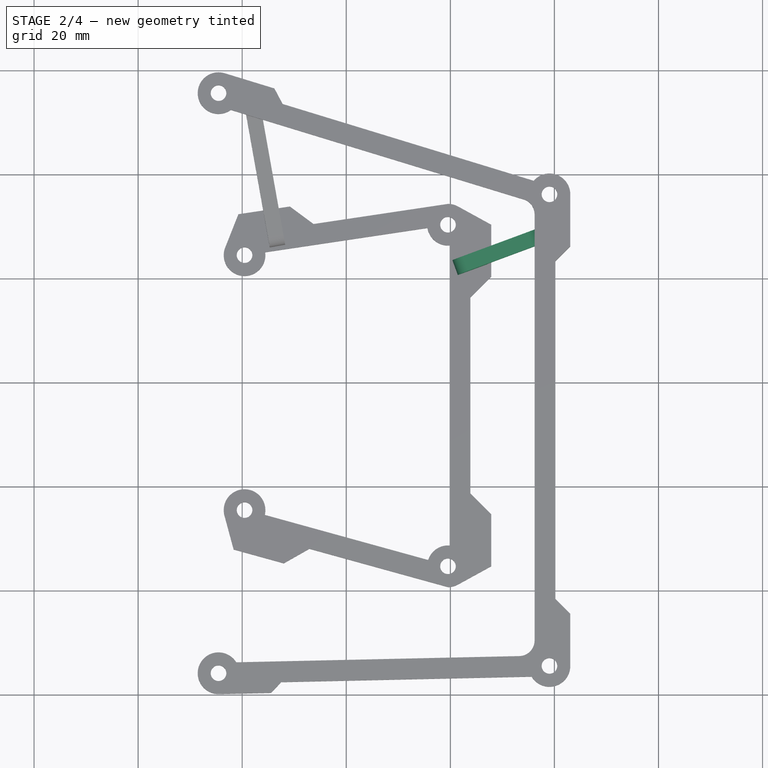
[diagram: stage 2 of 4 — top view after this stage's code; geometry added in this stage tinted green]
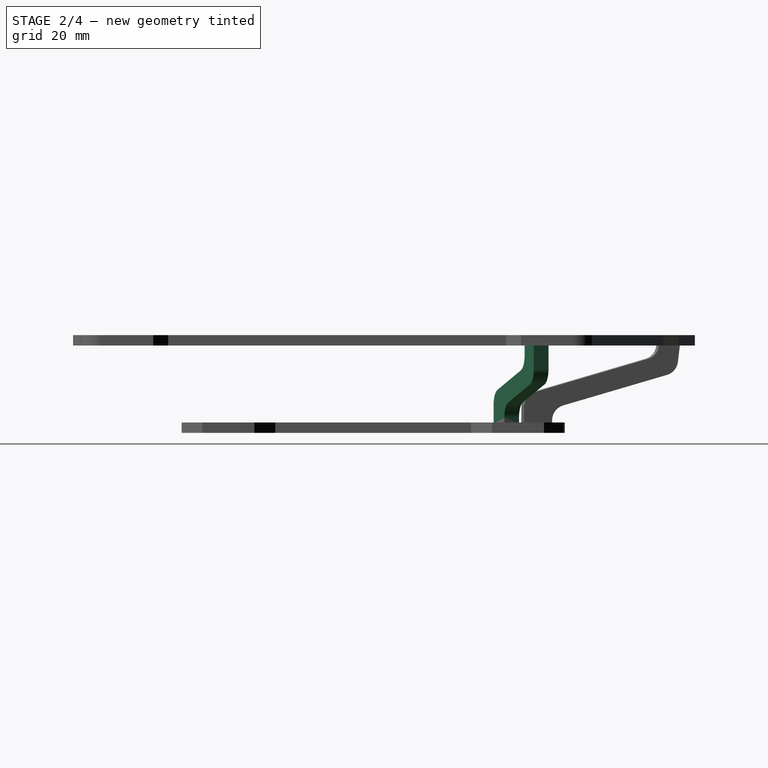
[diagram: stage 2 of 4 — right view after this stage's code; geometry added in this stage tinted green]
FEATURE [PartDesign::Body] Body001  label="top"
  Group = -> [Sketch001,Pad001,DatumPoint]
  Origin = -> Origin001
  Tip = -> Pad001
FEATURE [Part::Fuse] Fusion  label="stages"
  Base = -> Body
  Tool = -> Body001
FEATURE [PartDesign::Body] Body002  label="shaft-01"
  Group = -> [Sketch002,Sketch003,DatumPlane,Sketch004,Pad002]
  Origin = -> Origin002
  Tip = -> Pad002
FEATURE [PartDesign::Point] DatumPoint001
  AttacherType = Attacher::AttachEnginePoint
  MapMode = 37
  Placement = pos=(27.8617,20.35,2) rot=(0,0,1;0rad)
  Support = -> [Fusion]
FEATURE [PartDesign::Point] DatumPoint002
  AttacherType = Attacher::AttachEnginePoint
  MapMode = 37
  Placement = pos=(43.05,25.9,18.8) rot=(0,0,1;0rad)
  Support = -> [Fusion]
FEATURE [PartDesign::Plane] DatumPlane001
  AttachmentOffset = pos=(0,0,-4) rot=(0,0,1;0rad)
  Length = 48.6125
  MapMode = 52
  Placement = pos=(41.6771,29.657,18.8) rot=(0.378659,-0.606225,0.699363;2.84852rad)
  ResizeMode = 0
  Support = -> [DatumPoint002,DatumPoint001,Z_Axis003]
  Width = 73.7873
FEATURE [Sketcher::SketchObject] Sketch005
  MapMode = 5
  Placement = pos=(41.6771,29.657,18.8) rot=(0.378659,-0.606225,0.699363;2.84852rad)
  Support = -> [DatumPlane001]
  sketch-geometry (12):
    g0: LineSegment StartX=4.15121 StartY=27.5259 StartZ=0 EndX=6.61656 EndY=25.0045 EndZ=0
    g1: LineSegment StartX=7.06627 StartY=21.4014 StartZ=0 EndX=0.269525 EndY=9.68935 EndZ=0
    g2: LineSegment StartX=0.715657 StartY=6.08988 StartZ=0 EndX=2.23229 EndY=4.53347 EndZ=0
    g3: LineSegment StartX=2.23229 StartY=4.53347 StartZ=0 EndX=-1.45591 EndY=0.939527 EndZ=0
    g4: LineSegment StartX=-1.45591 StartY=0.939527 StartZ=0 EndX=-4.8667 EndY=4.43977 EndZ=0
    g5: LineSegment StartX=-5.31283 StartY=8.03923 StartZ=0 EndX=1.04248 EndY=18.9906 EndZ=0
    g6: LineSegment StartX=0.59277 StartY=22.5937 StartZ=0 EndX=-0.133446 EndY=23.3364 EndZ=0
    g7: LineSegment StartX=-0.133446 StartY=23.3364 StartZ=0 EndX=4.15121 EndY=27.5259 EndZ=0
    g8: ArcOfCircle CenterX=4.47154 CenterY=22.9071 CenterZ=0 NormalX=0 NormalY=0 NormalZ=1 AngleXU=0 Radius=3 StartAngle=5.75736 EndAngle=7.05735
    g9: ArcOfCircle CenterX=-1.55225 CenterY=20.4964 CenterZ=0 NormalX=0 NormalY=0 NormalZ=1 AngleXU=0 Radius=3 StartAngle=5.75736 EndAngle=7.05735
    g10: ArcOfCircle CenterX=2.86426 CenterY=8.18357 CenterZ=0 NormalX=0 NormalY=0 NormalZ=1 AngleXU=0 Radius=3 StartAngle=2.61577 EndAngle=3.91405
    g11: ArcOfCircle CenterX=-2.7181 CenterY=6.53345 CenterZ=0 NormalX=0 NormalY=0 NormalZ=1 AngleXU=0 Radius=3 StartAngle=2.61577 EndAngle=3.91405
  constraints (22):
    c: Coincident(g2,g3)
    c: Coincident(g3,g4)
    c: Coincident(g6,g7)
    c: Coincident(g0,g7)
    c: Tangent(g0,g8) = 1.5708
    c: Tangent(g1,g8) = 1.5708
    c: Tangent(g5,g9) = -1.5708
    c: Tangent(g6,g9) = -1.5708
    c: Tangent(g1,g10) = -1.5708
    c: Tangent(g2,g10) = -1.5708
    c: Tangent(g4,g11) = 1.5708
    c: Tangent(g5,g11) = 1.5708
    c: Radius(g11) = 3
    c: Equal(g11,g10)
    c: Equal(g11,g9)
    c: Equal(g11,g8)
    c: Parallel(g5,g1)
    c: Distance(g5,g1) = 4
    c: Parallel(g2,g4)
    c: Perpendicular(g3,g2)
    c: Parallel(g0,g6)
    c: Perpendicular(g0,g7)
FEATURE [PartDesign::Pad] Pad003
  Length = 3
  Length2 = 100
  Midplane = true
  Placement = pos=(41.6771,29.657,18.8) rot=(0.378659,-0.606225,0.699363;2.84852rad)
  Profile = -> Sketch005
  Type = 0
FEATURE [PartDesign::Body] Body005  label="shaft-04"
  Group = -> [DatumLine001,DatumLine002,DatumPoint005,DatumPoint006,DatumPlane003,Sketch007,Pad005]
  Origin = -> Origin005
  Tip = -> Pad005
FEATURE [Part::Fuse] Fusion001
  Base = -> Fusion
  Tool = -> Body002
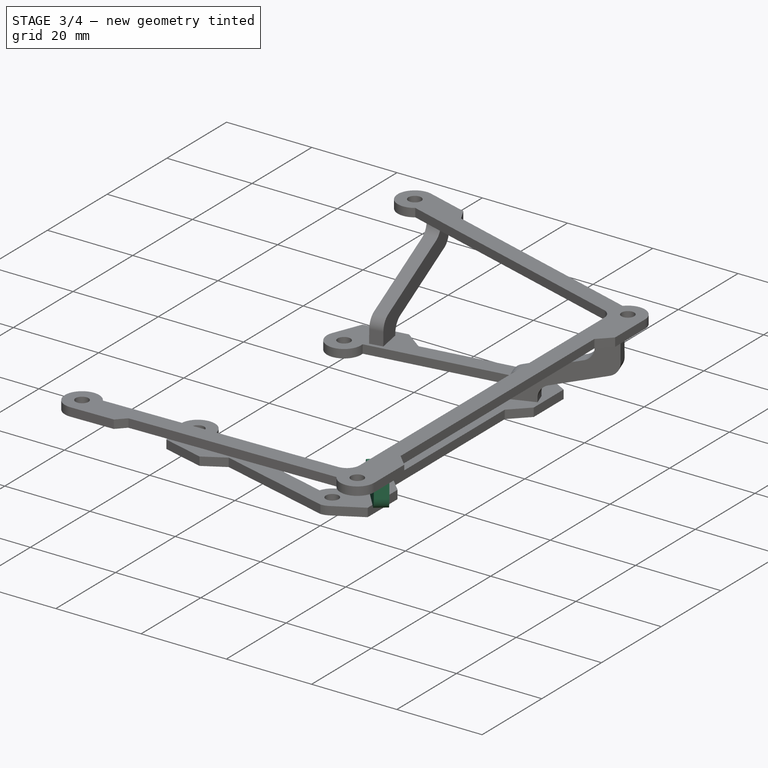
[diagram: stage 3 of 4 — iso view after this stage's code; geometry added in this stage tinted green]
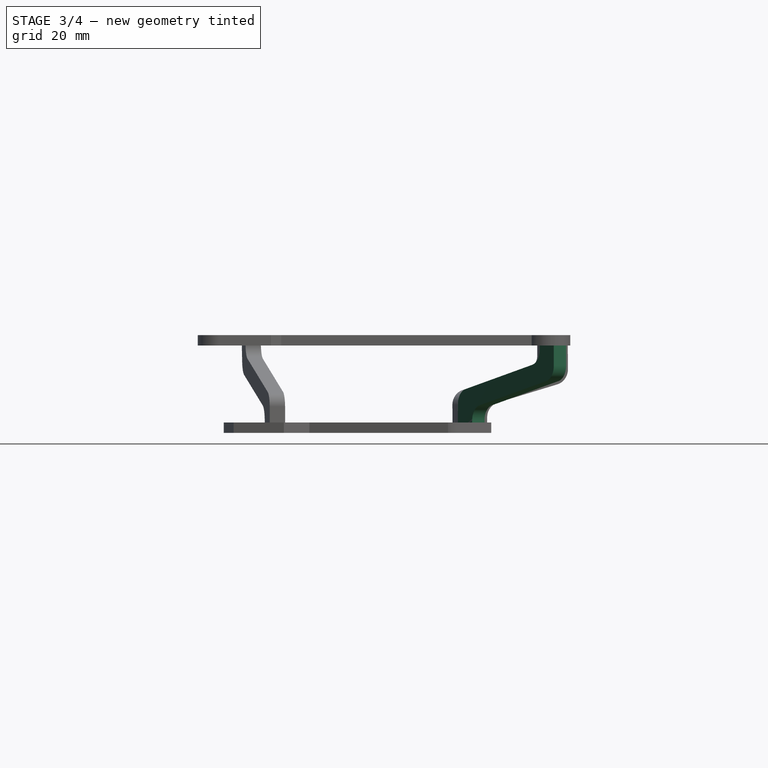
[diagram: stage 3 of 4 — front view after this stage's code; geometry added in this stage tinted green]
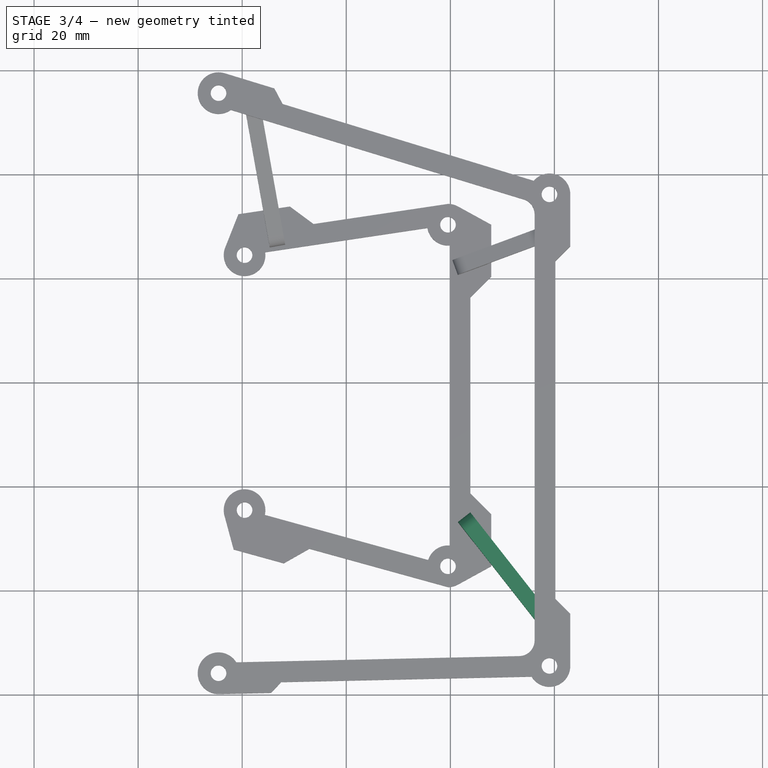
[diagram: stage 3 of 4 — top view after this stage's code; geometry added in this stage tinted green]
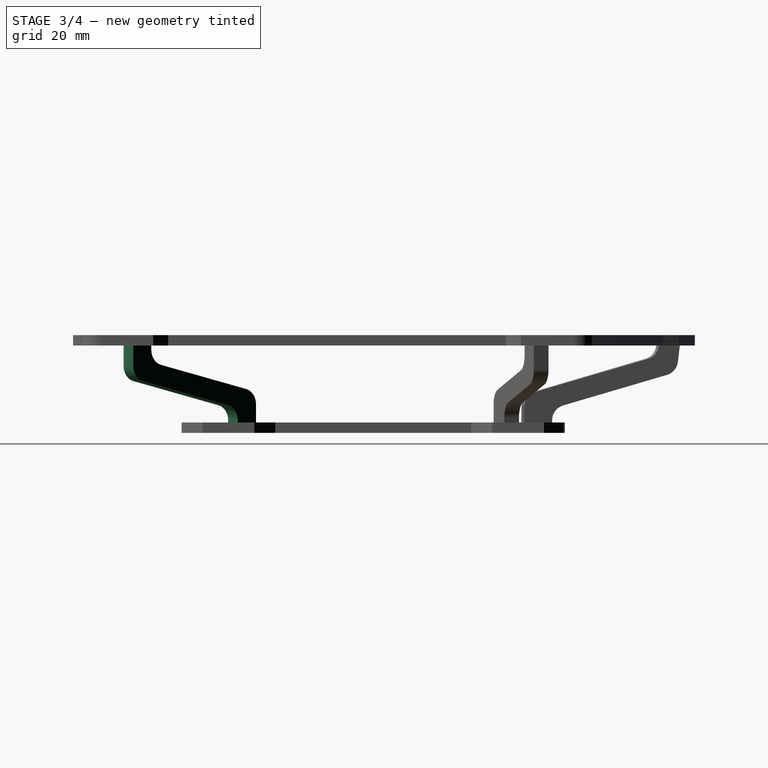
[diagram: stage 3 of 4 — right view after this stage's code; geometry added in this stage tinted green]
FEATURE [PartDesign::Body] Body003  label="shatf-02"
  Group = -> [DatumPoint001,DatumPoint002,DatumPlane001,Sketch005,Pad003]
  Origin = -> Origin003
  Tip = -> Pad003
FEATURE [PartDesign::Point] DatumPoint003
  AttacherType = Attacher::AttachEnginePoint
  MapMode = 37
  Placement = pos=(27.8617,-25.3,2) rot=(0,0,1;0rad)
  Support = -> [Fusion]
FEATURE [PartDesign::Point] DatumPoint004
  AttacherType = Attacher::AttachEnginePoint
  MapMode = 37
  Placement = pos=(43.05,-44.75,18.8) rot=(0,0,1;0rad)
  Support = -> [Fusion]
FEATURE [PartDesign::Plane] DatumPlane002
  AttachmentOffset = pos=(0,0,4.5) rot=(0,0,1;0rad)
  Length = 45.9487
  MapMode = 52
  Placement = pos=(39.5033,-47.5196,18.8) rot=(0.028111,-0.861028,0.50778;1.92561rad)
  ResizeMode = 0
  Support = -> [DatumPoint004,DatumPoint003,Z_Axis004]
  Width = 89.4328
FEATURE [PartDesign::Line] DatumLine  label="Z"
  AttacherType = Attacher::AttachEngineLine
  MapMode = 29
  Support = -> [Z_Axis004]
FEATURE [Sketcher::SketchObject] Sketch006
  ExternalGeometry = -> [DatumLine]
  MapMode = 5
  Placement = pos=(39.5033,-47.5196,18.8) rot=(0.028111,-0.861028,0.50778;1.92561rad)
  Support = -> [DatumPlane002]
  sketch-geometry (12):
    g0: LineSegment StartX=0.144699 StartY=33.0441 StartZ=0 EndX=4.41891 EndY=30.1343 EndZ=0
    g1: LineSegment StartX=5.5192 StartY=26.548 StartZ=0 EndX=-2.35523 EndY=6.7012 EndZ=0
    g2: LineSegment StartX=-1.25495 StartY=3.11494 StartZ=0 EndX=0.091634 EndY=2.19822 EndZ=0
    g3: LineSegment StartX=0.091634 StartY=2.19822 StartZ=0 EndX=-2.38517 EndY=-1.43998 EndZ=0
    g4: LineSegment StartX=-2.38517 StartY=-1.43998 StartZ=0 EndX=-6.30636 EndY=1.22948 EndZ=0
    g5: LineSegment StartX=-7.40665 StartY=4.81574 StartZ=0 EndX=0.451851 EndY=24.6224 EndZ=0
    g6: LineSegment StartX=-0.648436 StartY=28.2087 StartZ=0 EndX=-2.35583 EndY=29.371 EndZ=0
    g7: LineSegment StartX=-2.35583 StartY=29.371 StartZ=0 EndX=0.144699 EndY=33.0441 EndZ=0
    g8: ArcOfCircle CenterX=2.73066 CenterY=27.6544 CenterZ=0 NormalX=0 NormalY=0 NormalZ=1 AngleXU=0 Radius=3 StartAngle=5.90547 EndAngle=7.25627
    g9: ArcOfCircle CenterX=-2.33668 CenterY=25.7288 CenterZ=0 NormalX=0 NormalY=0 NormalZ=1 AngleXU=0 Radius=3 StartAngle=5.90547 EndAngle=7.25627
    g10: ArcOfCircle CenterX=-4.61811 CenterY=3.70936 CenterZ=0 NormalX=0 NormalY=0 NormalZ=1 AngleXU=0 Radius=3 StartAngle=2.76388 EndAngle=4.11468
    g11: ArcOfCircle CenterX=0.433299 CenterY=5.59482 CenterZ=0 NormalX=0 NormalY=0 NormalZ=1 AngleXU=0 Radius=3 StartAngle=2.76388 EndAngle=4.11468
  constraints (24):
    c: Coincident(g2,g3)
    c: Coincident(g3,g4)
    c: Coincident(g6,g7)
    c: Coincident(g7,g0)
    c: Parallel(g0,g6)
    c: Perpendicular(g7,g0)
    c: Parallel(g1,g5)
    c: Parallel(g2,g4)
    c: Perpendicular(g3,g2)
    c: Tangent(g0,g8) = 1.5708
    c: Tangent(g1,g8) = 1.5708
    c: Tangent(g5,g9) = -1.5708
    c: Tangent(g6,g9) = -1.5708
    c: Tangent(g4,g10) = 1.5708
    c: Tangent(g5,g10) = 1.5708
    c: Tangent(g1,g11) = -1.5708
    c: Tangent(g2,g11) = -1.5708
    c: Radius(g11) = 3
    c: Equal(g11,g10)
    c: Equal(g11,g9)
    c: Equal(g11,g8)
    c: Distance(g1,g5) = 4
    c: Parallel(g0,g-3)
    c: Parallel(g-3,g4)
FEATURE [PartDesign::Pad] Pad004
  Length = 3
  Length2 = 100
  Midplane = true
  Placement = pos=(39.5033,-47.5196,18.8) rot=(0.028111,-0.861028,0.50778;1.92561rad)
  Profile = -> Sketch006
  Type = 0
FEATURE [Part::Fuse] Fusion002
  Base = -> Fusion001
  Tool = -> Body003
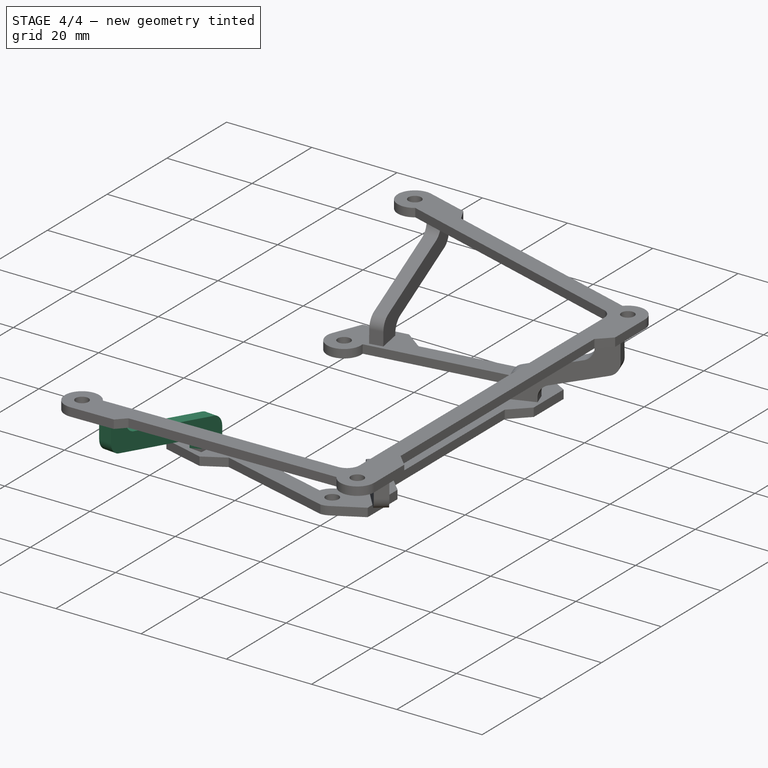
[diagram: stage 4 of 4 — iso view after this stage's code; geometry added in this stage tinted green]
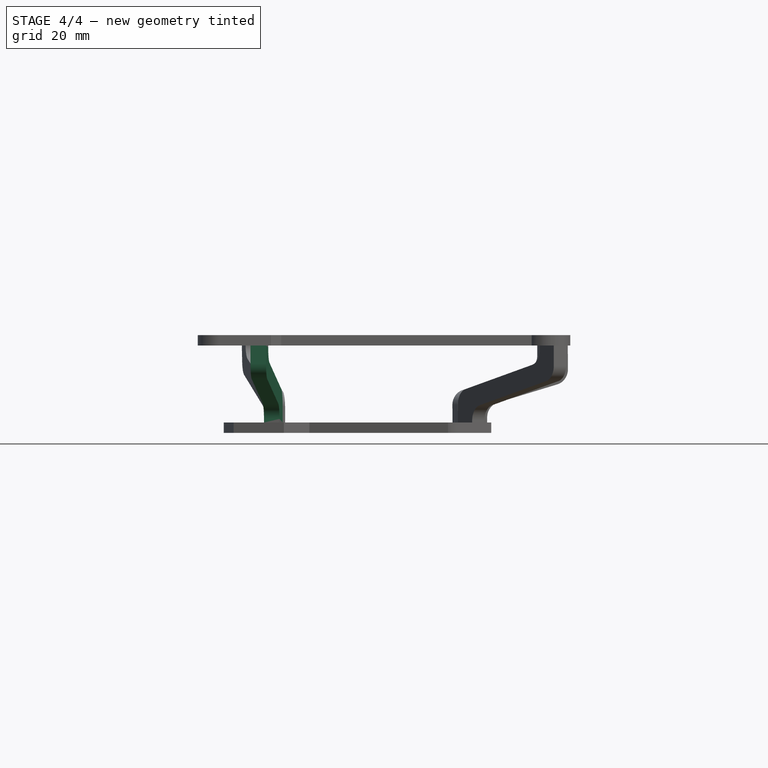
[diagram: stage 4 of 4 — front view after this stage's code; geometry added in this stage tinted green]
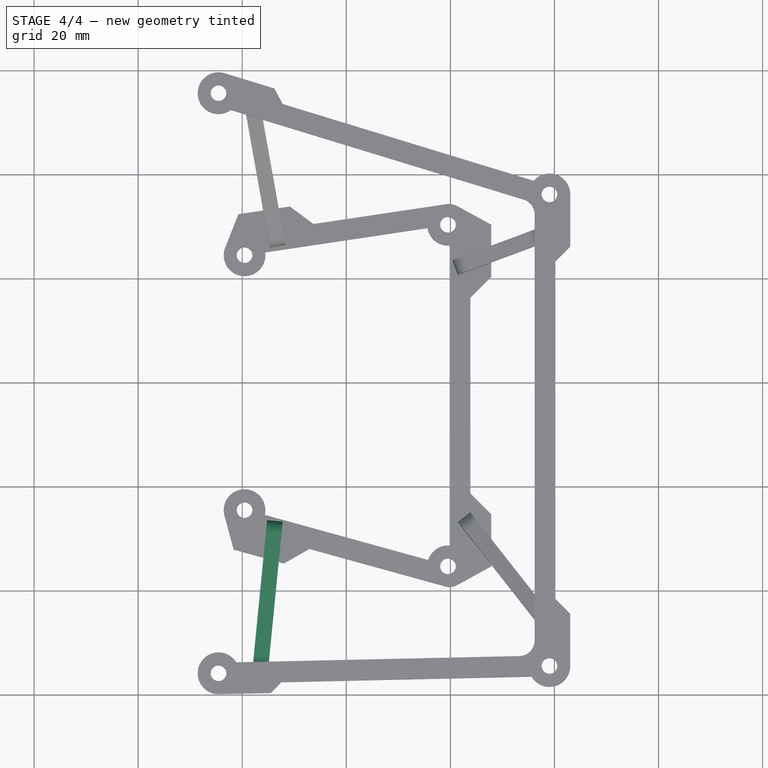
[diagram: stage 4 of 4 — top view after this stage's code; geometry added in this stage tinted green]
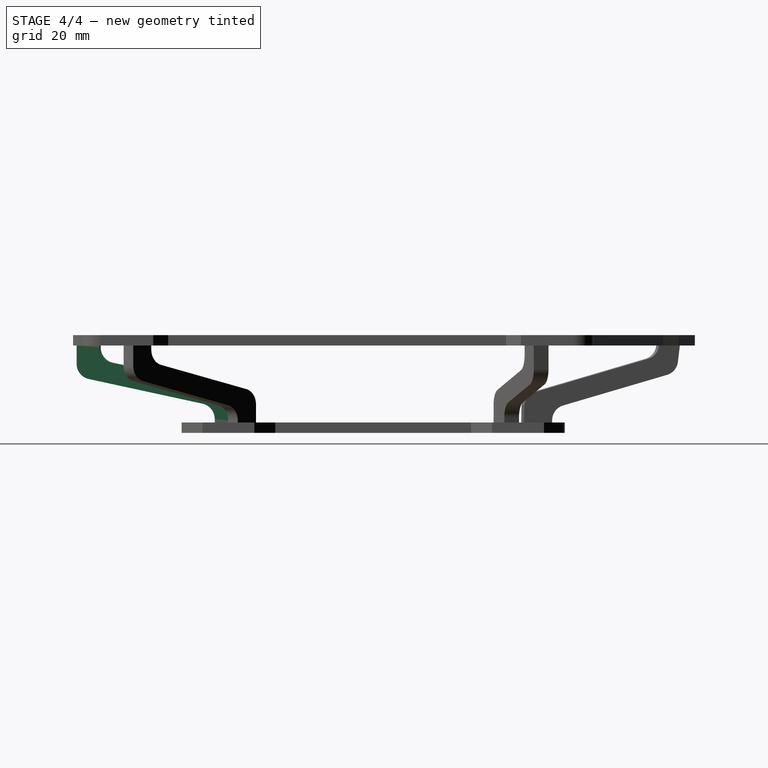
[diagram: stage 4 of 4 — right view after this stage's code; geometry added in this stage tinted green]
FEATURE [PartDesign::Body] Body004  label="shaft-03"
  Group = -> [DatumPoint003,DatumPoint004,DatumPlane002,Sketch006,Pad004,DatumLine]
  Origin = -> Origin004
  Tip = -> Pad004
FEATURE [PartDesign::Line] DatumLine001  label="Z-04"
  AttacherType = Attacher::AttachEngineLine
  MapMode = 29
  Support = -> [Z_Axis005]
FEATURE [PartDesign::Line] DatumLine002  label="Y-04"
  AttacherType = Attacher::AttachEngineLine
  MapMode = 29
  Placement = pos=(0,0,0) rot=(0,0.707107,0.707107;3.14159rad)
  Support = -> [Y_Axis005]
FEATURE [PartDesign::Point] DatumPoint005
  AttacherType = Attacher::AttachEnginePoint
  MapMode = 37
  Placement = pos=(-12.0025,-34.7345,2) rot=(0,0,1;0rad)
  Support = -> [Fusion]
FEATURE [PartDesign::Point] DatumPoint006
  AttacherType = Attacher::AttachEnginePoint
  MapMode = 37
  Placement = pos=(-14.4644,-59.929,18.8) rot=(0,0,1;0rad)
  Support = -> [Fusion]
FEATURE [PartDesign::Plane] DatumPlane003
  AttachmentOffset = pos=(0,0,2.5) rot=(0,0,1;0rad)
  Length = 42.3963
  MapMode = 52
  Placement = pos=(-16.9525,-59.6858,18.8) rot=(-0.325665,-0.915801,0.235056;1.62931rad)
  ResizeMode = 0
  Support = -> [DatumPoint006,DatumPoint005,DatumLine001]
  Width = 85.825
FEATURE [Sketcher::SketchObject] Sketch007
  ExternalGeometry = -> [DatumLine001,DatumLine002]
  MapMode = 5
  Placement = pos=(-16.9525,-59.6858,18.8) rot=(-0.325665,-0.915801,0.235056;1.62931rad)
  Support = -> [DatumPlane003]
  sketch-geometry (12):
    g0: LineSegment StartX=4.2076 StartY=37.0498 StartZ=0 EndX=7.23167 EndY=35.0428 EndZ=0
    g1: LineSegment StartX=8.36613 StartY=31.449 StartZ=0 EndX=-0.494965 EndY=8.82738 EndZ=0
    g2: LineSegment StartX=0.639498 StartY=5.23358 StartZ=0 EndX=1.08157 EndY=4.9402 EndZ=0
    g3: LineSegment StartX=1.08157 StartY=4.9402 StartZ=0 EndX=-1.32887 EndY=1.30812 EndZ=0
    g4: LineSegment StartX=-1.32887 StartY=1.30812 StartZ=0 EndX=-4.39659 EndY=3.34401 EndZ=0
    g5: LineSegment StartX=-5.53105 StartY=6.93781 StartZ=0 EndX=2.65409 EndY=27.8338 EndZ=0
    g6: LineSegment StartX=1.51963 StartY=31.4276 StartZ=0 EndX=0.795403 EndY=31.9082 EndZ=0
    g7: LineSegment StartX=0.795403 StartY=31.9082 StartZ=0 EndX=4.2076 EndY=37.0498 EndZ=0
    g8: ArcOfCircle CenterX=-0.139254 CenterY=28.928 CenterZ=0 NormalX=0 NormalY=0 NormalZ=1 AngleXU=0 Radius=3 StartAngle=5.90985 EndAngle=7.26807
    g9: ArcOfCircle CenterX=5.57279 CenterY=32.5432 CenterZ=0 NormalX=0 NormalY=0 NormalZ=1 AngleXU=0 Radius=3 StartAngle=5.90985 EndAngle=7.26807
    g10: ArcOfCircle CenterX=2.29838 CenterY=7.7332 CenterZ=0 NormalX=0 NormalY=0 NormalZ=1 AngleXU=0 Radius=3 StartAngle=2.76825 EndAngle=4.12648
    g11: ArcOfCircle CenterX=-2.7377 CenterY=5.84364 CenterZ=0 NormalX=0 NormalY=0 NormalZ=1 AngleXU=0 Radius=3 StartAngle=2.76825 EndAngle=4.12648
  constraints (24):
    c: Coincident(g2,g3)
    c: Coincident(g3,g4)
    c: Coincident(g6,g7)
    c: Coincident(g0,g7)
    c: Parallel(g7,g-4)
    c: Parallel(g-4,g3)
    c: Parallel(g1,g5)
    c: Parallel(g0,g6)
    c: Parallel(g6,g2)
    c: Parallel(g2,g4)
    c: Parallel(g4,g-3)
    c: Tangent(g5,g8) = -1.5708
    c: Tangent(g6,g8) = -1.5708
    c: Tangent(g0,g9) = 1.5708
    c: Tangent(g1,g9) = 1.5708
    c: Tangent(g1,g10) = -1.5708
    c: Tangent(g2,g10) = -1.5708
    c: Tangent(g4,g11) = 1.5708
    c: Tangent(g5,g11) = 1.5708
    c: Radius(g11) = 3
    c: Equal(g11,g10)
    c: Equal(g11,g9)
    c: Equal(g11,g8)
    c: Distance(g5,g1) = 4
FEATURE [PartDesign::Pad] Pad005
  Length = 3
  Length2 = 100
  Midplane = true
  Placement = pos=(-16.9525,-59.6858,18.8) rot=(-0.325665,-0.915801,0.235056;1.62931rad)
  Profile = -> Sketch007
  Type = 0
FEATURE [Part::Fuse] Fusion003
  Base = -> Fusion002
  Tool = -> Body004
FEATURE [Part::Fuse] Fusion004
  Base = -> Fusion003
  Refine = true
  Tool = -> Body005
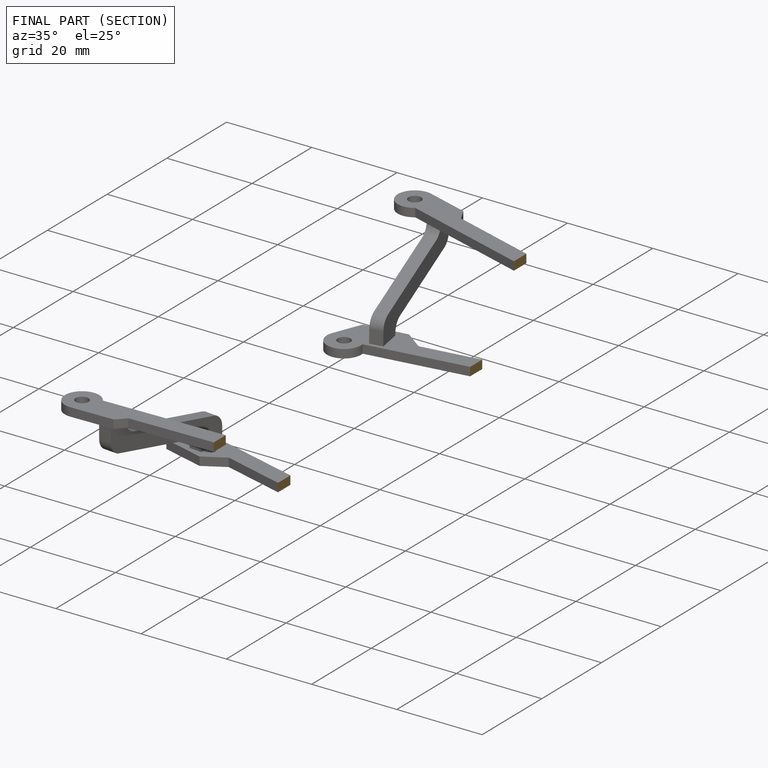
[diagram: finished part — half-section view (interior)]
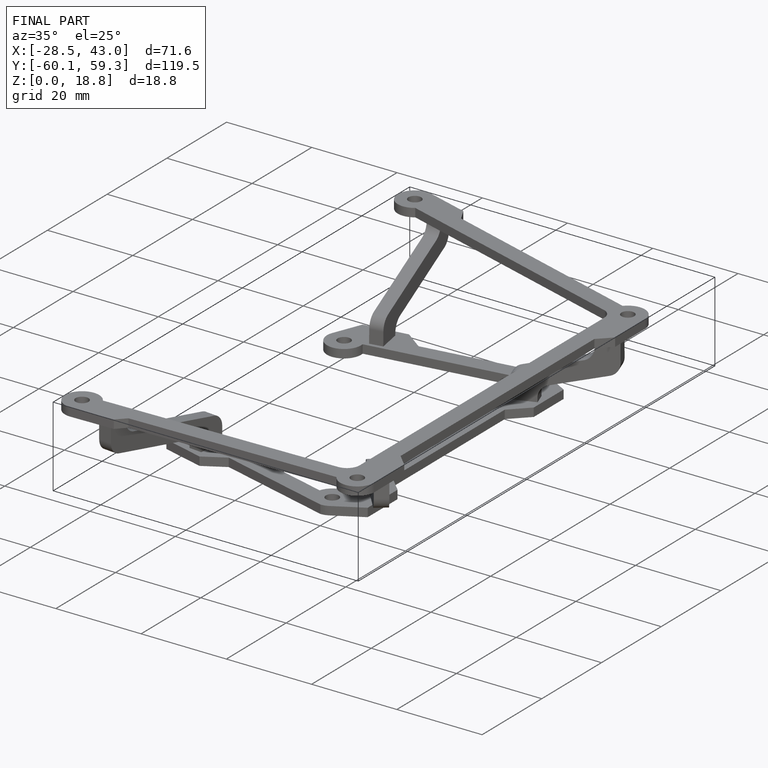
[diagram: finished part — iso view with bounding-box wireframe]
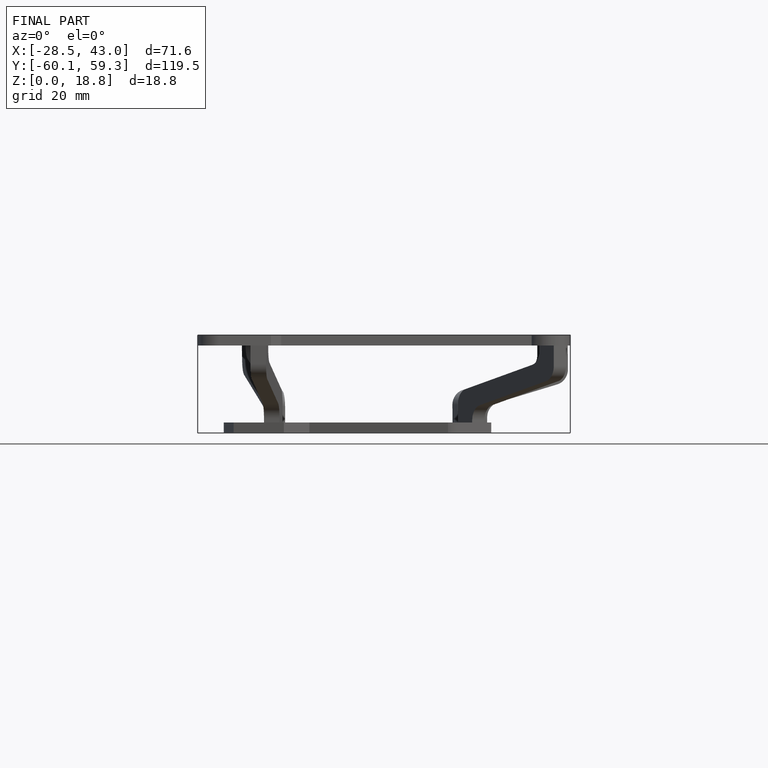
[diagram: finished part — front view with bounding-box wireframe]
